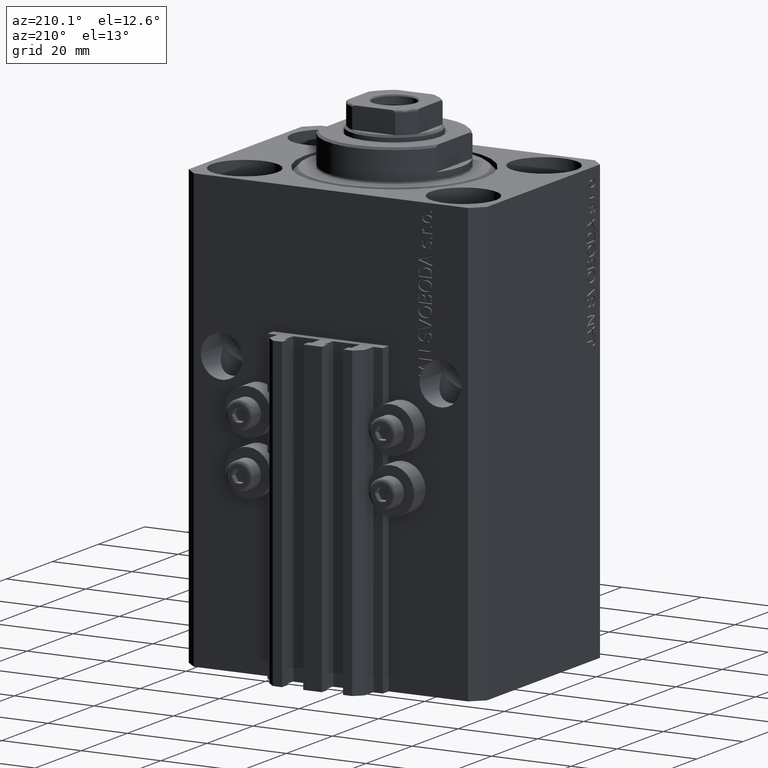
[diagram: clean part render]
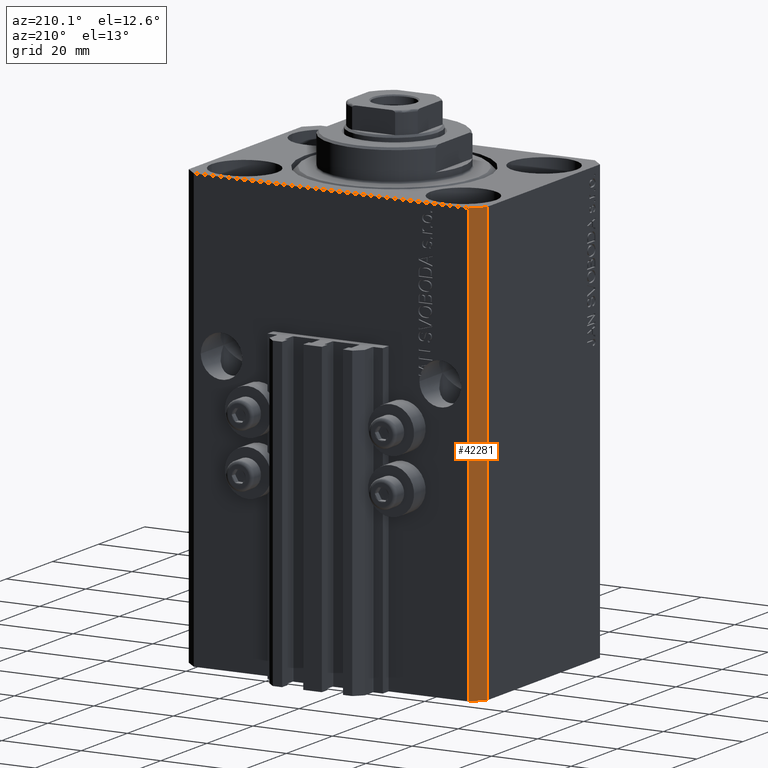
[diagram: same view with one face highlighted and labeled with its STEP entity id]
A machine part, auxiliary view. The second image highlights one B-rep face of the part: STEP entity #42281.
In plain terms, the highlighted planar face has unit normal (-0.7071, 0.7071, 0).
Its self-contained STEP definition (entity closure, byte-faithful):
#503 = LINE ( 'NONE', #36735, #21573 ) ;
#4298 = DIRECTION ( 'NONE',  ( 0.000000000000000000, 0.000000000000000000, 1.000000000000000000 ) ) ;
#5188 = EDGE_CURVE ( 'NONE', #46161, #46066, #503, .T. ) ;
#5902 = LINE ( 'NONE', #20378, #35198 ) ;
#8011 = ORIENTED_EDGE ( 'NONE', *, *, #5188, .T. ) ;
#8051 = DIRECTION ( 'NONE',  ( -0.7071067811865471286, -0.7071067811865479058, 0.000000000000000000 ) ) ;
#10587 = VECTOR ( 'NONE', #8051, 1000.000000000000000 ) ;
#11954 = CARTESIAN_POINT ( 'NONE',  ( -34.49999999999999289, 27.50000000000000000, -110.0000000000000000 ) ) ;
#12692 = CARTESIAN_POINT ( 'NONE',  ( -34.49999999999999289, 27.50000000000000000, -110.0000000000000000 ) ) ;
#13772 = CARTESIAN_POINT ( 'NONE',  ( -37.49999999999999289, 24.50000000000000000, -110.0000000000000000 ) ) ;
#14238 = VECTOR ( 'NONE', #25991, 1000.000000000000000 ) ;
#14430 = FACE_OUTER_BOUND ( 'NONE', #40391, .T. ) ;
#15140 = DIRECTION ( 'NONE',  ( -0.7071067811865471286, -0.7071067811865479058, 0.000000000000000000 ) ) ;
#15617 = CARTESIAN_POINT ( 'NONE',  ( -34.49999999999999289, 27.50000000000000000, 0.000000000000000000 ) ) ;
#16041 = VERTEX_POINT ( 'NONE', #40265 ) ;
#18719 = CARTESIAN_POINT ( 'NONE',  ( -34.49999999999999289, 27.50000000000000000, -110.0000000000000000 ) ) ;
#20378 = CARTESIAN_POINT ( 'NONE',  ( -34.49999999999999289, 27.50000000000000000, -110.0000000000000000 ) ) ;
#20418 = CARTESIAN_POINT ( 'NONE',  ( -37.49999999999999289, 24.50000000000000000, 0.000000000000000000 ) ) ;
#21573 = VECTOR ( 'NONE', #4298, 1000.000000000000000 ) ;
#22897 = EDGE_CURVE ( 'NONE', #16041, #46066, #33609, .T. ) ;
#25350 = DIRECTION ( 'NONE',  ( -0.7071067811865479058, 0.7071067811865471286, 0.000000000000000000 ) ) ;
#25991 = DIRECTION ( 'NONE',  ( 0.000000000000000000, 0.000000000000000000, 1.000000000000000000 ) ) ;
#26227 = ORIENTED_EDGE ( 'NONE', *, *, #34162, .T. ) ;
#26813 = DIRECTION ( 'NONE',  ( -0.7071067811865471286, -0.7071067811865479058, 0.000000000000000000 ) ) ;
#33609 = LINE ( 'NONE', #15617, #10587 ) ;
#34162 = EDGE_CURVE ( 'NONE', #44647, #46161, #5902, .T. ) ;
#35198 = VECTOR ( 'NONE', #26813, 1000.000000000000000 ) ;
#36215 = PLANE ( 'NONE',  #46043 ) ;
#36735 = CARTESIAN_POINT ( 'NONE',  ( -37.49999999999999289, 24.50000000000000000, -110.0000000000000000 ) ) ;
#38565 = ORIENTED_EDGE ( 'NONE', *, *, #44851, .F. ) ;
#40265 = CARTESIAN_POINT ( 'NONE',  ( -34.49999999999999289, 27.50000000000000000, 0.000000000000000000 ) ) ;
#40391 = EDGE_LOOP ( 'NONE', ( #44195, #38565, #26227, #8011 ) ) ;
#40631 = LINE ( 'NONE', #11954, #14238 ) ;
#42281 = ADVANCED_FACE ( 'NONE', ( #14430 ), #36215, .T. ) ;
#44195 = ORIENTED_EDGE ( 'NONE', *, *, #22897, .F. ) ;
#44647 = VERTEX_POINT ( 'NONE', #12692 ) ;
#44851 = EDGE_CURVE ( 'NONE', #44647, #16041, #40631, .T. ) ;
#46043 = AXIS2_PLACEMENT_3D ( 'NONE', #18719, #25350, #15140 ) ;
#46066 = VERTEX_POINT ( 'NONE', #20418 ) ;
#46161 = VERTEX_POINT ( 'NONE', #13772 ) ;